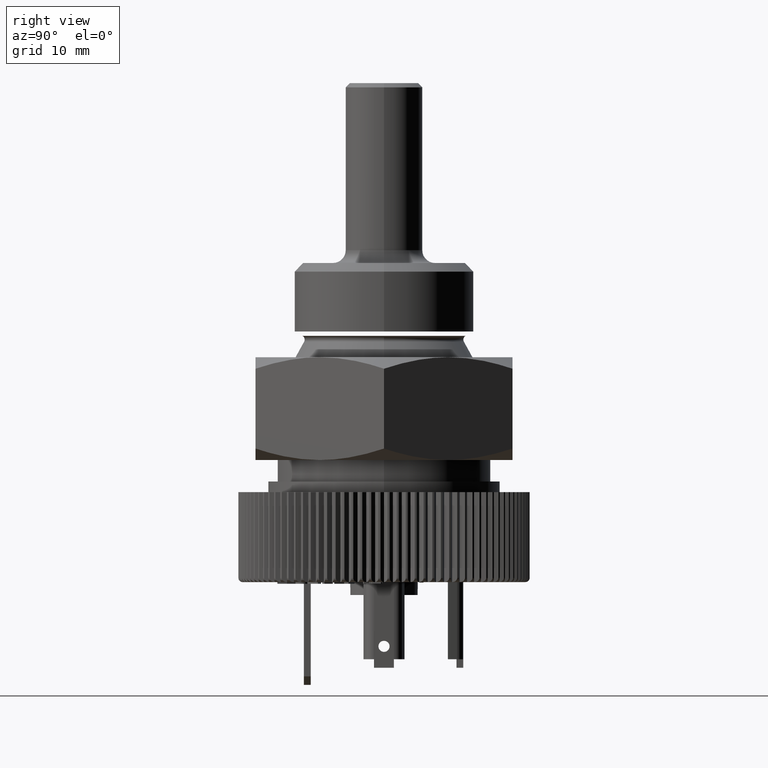
[diagram: clean part render]
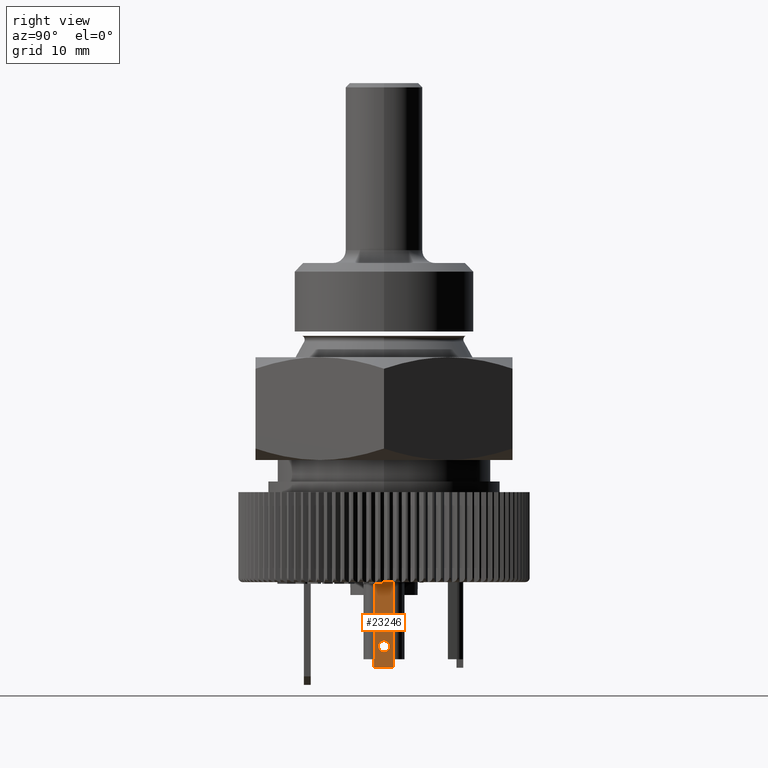
[diagram: same view with one face highlighted and labeled with its STEP entity id]
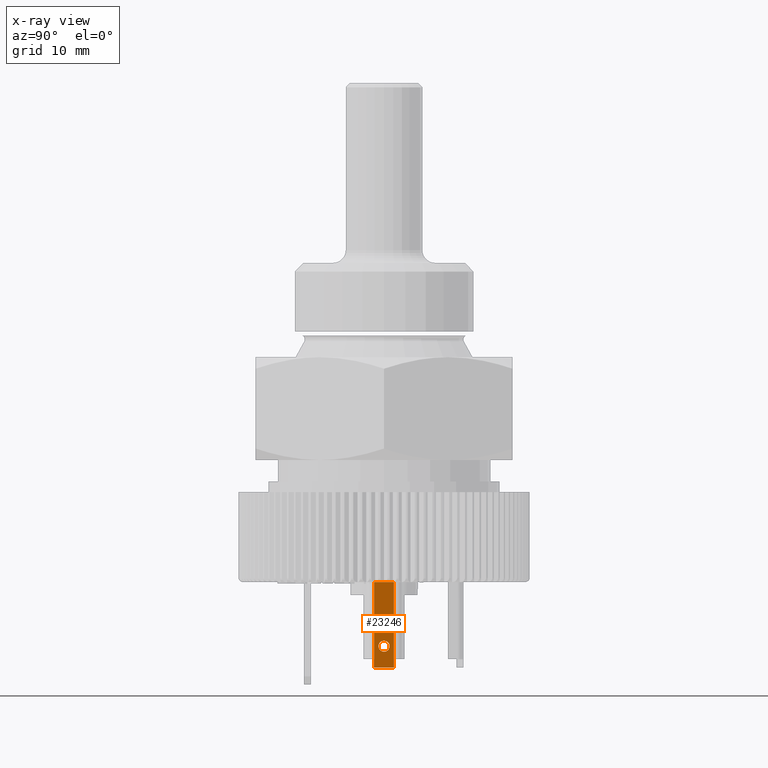
[diagram: x-ray of the same camera — body ghosted, the highlighted face saturated]
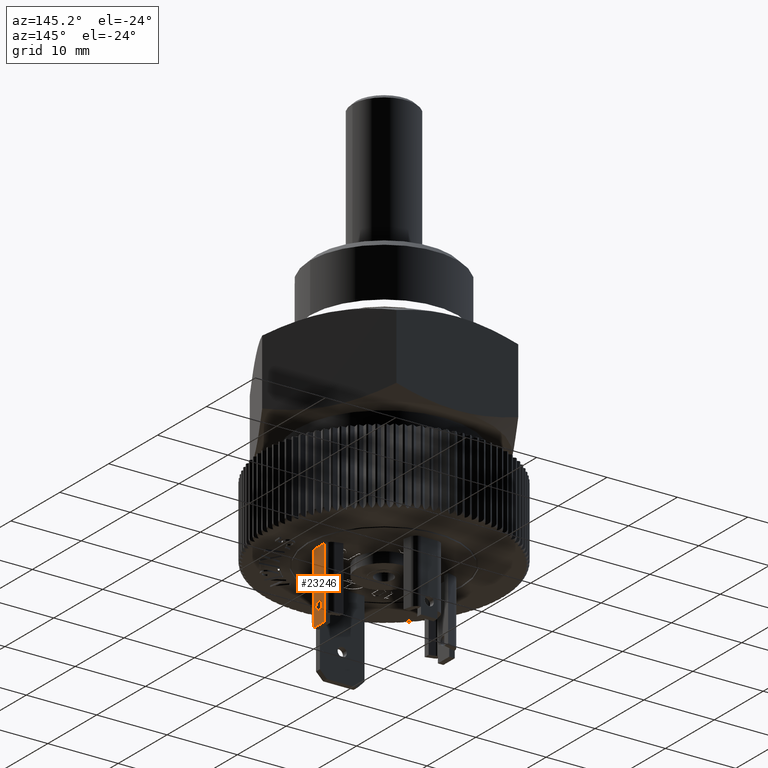
[diagram: same view with one face highlighted and labeled with its STEP entity id]
A machine part, right view. The second image highlights one B-rep face of the part: STEP entity #23246.
The next image is the same camera in x-ray: the body ghosted, the highlighted face saturated — about 0% of this face is hidden behind the body in this view.
A second angle (auxiliary view) of the same face is appended — the face is thin or edge-on in the first view.
In plain terms, the highlighted planar face has unit normal (-1, -0, 0).
Its self-contained STEP definition (entity closure, byte-faithful):
#24 = VECTOR ( 'NONE', #18138, 1000.000000000000000 ) ;
#135 = AXIS2_PLACEMENT_3D ( 'NONE', #26092, #16119, #13346 ) ;
#937 = VERTEX_POINT ( 'NONE', #28918 ) ;
#1389 = LINE ( 'NONE', #25595, #32866 ) ;
#1567 = DIRECTION ( 'NONE',  ( 0.0000000000000000000, 0.0000000000000000000, 1.000000000000000000 ) ) ;
#1686 = LINE ( 'NONE', #33519, #33429 ) ;
#1783 = DIRECTION ( 'NONE',  ( 1.000000000000000000, 1.942890293094023946E-16, 0.0000000000000000000 ) ) ;
#2326 = CARTESIAN_POINT ( 'NONE',  ( 9.249999999999998224, 1.150364465645019596, -36.25000000000000711 ) ) ;
#2588 = FACE_BOUND ( 'NONE', #10294, .T. ) ;
#3653 = EDGE_CURVE ( 'NONE', #27846, #5579, #3967, .T. ) ;
#3967 = CIRCLE ( 'NONE', #23410, 0.6500000000000002442 ) ;
#4434 = CARTESIAN_POINT ( 'NONE',  ( 9.250000000000000000, -1.150364465645023149, -26.25000000000000355 ) ) ;
#4654 = VECTOR ( 'NONE', #16002, 1000.000000000000000 ) ;
#4773 = LINE ( 'NONE', #31583, #22354 ) ;
#5219 = LINE ( 'NONE', #10958, #10971 ) ;
#5244 = CARTESIAN_POINT ( 'NONE',  ( 9.249999999999998224, -1.165711005404602485, -36.25000000000000711 ) ) ;
#5579 = VERTEX_POINT ( 'NONE', #6436 ) ;
#6048 = ORIENTED_EDGE ( 'NONE', *, *, #3653, .F. ) ;
#6398 = CARTESIAN_POINT ( 'NONE',  ( 9.250000000000000000, -1.150364465645022927, -35.25000000000000000 ) ) ;
#6436 = CARTESIAN_POINT ( 'NONE',  ( 9.249999999999998224, 0.6500000000000021316, -33.75000000000000000 ) ) ;
#6818 = CARTESIAN_POINT ( 'NONE',  ( 9.249999999999998224, 1.797173521111971755E-15, -33.75000000000000000 ) ) ;
#7145 = CARTESIAN_POINT ( 'NONE',  ( 9.249999999999998224, -1.165711005404602485, -35.25000000000000000 ) ) ;
#7246 = VERTEX_POINT ( 'NONE', #10526 ) ;
#7560 = VECTOR ( 'NONE', #19735, 1000.000000000000000 ) ;
#9396 = EDGE_CURVE ( 'NONE', #14337, #937, #5219, .T. ) ;
#10275 = CARTESIAN_POINT ( 'NONE',  ( 9.249999999999998224, -1.165711005404602485, -36.25000000000000711 ) ) ;
#10294 = EDGE_LOOP ( 'NONE', ( #14831, #6048 ) ) ;
#10526 = CARTESIAN_POINT ( 'NONE',  ( 9.250000000000000000, -1.150364465645022927, -35.25000000000000000 ) ) ;
#10730 = ORIENTED_EDGE ( 'NONE', *, *, #26961, .T. ) ;
#10958 = CARTESIAN_POINT ( 'NONE',  ( 9.249999999999998224, 1.150364465645019596, -35.25000000000000000 ) ) ;
#10971 = VECTOR ( 'NONE', #15473, 1000.000000000000000 ) ;
#11374 = ORIENTED_EDGE ( 'NONE', *, *, #23350, .T. ) ;
#12018 = EDGE_CURVE ( 'NONE', #33713, #30530, #34307, .T. ) ;
#12533 = EDGE_CURVE ( 'NONE', #7246, #24629, #4773, .T. ) ;
#12582 = DIRECTION ( 'NONE',  ( 1.942890293094023946E-16, -1.000000000000000000, -0.0000000000000000000 ) ) ;
#12790 = ORIENTED_EDGE ( 'NONE', *, *, #16263, .F. ) ;
#13346 = DIRECTION ( 'NONE',  ( 9.482776684682665360E-16, -1.000000000000000000, 0.0000000000000000000 ) ) ;
#13811 = EDGE_CURVE ( 'NONE', #7246, #22066, #19896, .T. ) ;
#14337 = VERTEX_POINT ( 'NONE', #26888 ) ;
#14721 = DIRECTION ( 'NONE',  ( 9.482776684682665360E-16, -1.000000000000000000, 0.0000000000000000000 ) ) ;
#14831 = ORIENTED_EDGE ( 'NONE', *, *, #33235, .F. ) ;
#15363 = CARTESIAN_POINT ( 'NONE',  ( 9.249999999999998224, -1.165711005404602485, -36.25000000000000711 ) ) ;
#15473 = DIRECTION ( 'NONE',  ( 0.0000000000000000000, 0.0000000000000000000, 1.000000000000000000 ) ) ;
#15921 = ORIENTED_EDGE ( 'NONE', *, *, #12018, .F. ) ;
#16002 = DIRECTION ( 'NONE',  ( 1.942890293094023946E-16, -1.000000000000000000, -0.0000000000000000000 ) ) ;
#16059 = DIRECTION ( 'NONE',  ( 1.000000000000000000, 1.942890293094023946E-16, 0.0000000000000000000 ) ) ;
#16119 = DIRECTION ( 'NONE',  ( -1.000000000000000000, -9.482776684682665360E-16, 0.0000000000000000000 ) ) ;
#16263 = EDGE_CURVE ( 'NONE', #30530, #24629, #23724, .T. ) ;
#17566 = DIRECTION ( 'NONE',  ( 0.0000000000000000000, 1.000000000000000000, 0.0000000000000000000 ) ) ;
#18138 = DIRECTION ( 'NONE',  ( 0.0000000000000000000, 0.0000000000000000000, 1.000000000000000000 ) ) ;
#18608 = EDGE_LOOP ( 'NONE', ( #11374, #24998, #22560, #12790, #15921, #10730, #19671 ) ) ;
#18685 = AXIS2_PLACEMENT_3D ( 'NONE', #6818, #1783, #17566 ) ;
#19671 = ORIENTED_EDGE ( 'NONE', *, *, #9396, .T. ) ;
#19735 = DIRECTION ( 'NONE',  ( 0.0000000000000000000, 0.0000000000000000000, 1.000000000000000000 ) ) ;
#19896 = LINE ( 'NONE', #6398, #7560 ) ;
#20999 = FACE_OUTER_BOUND ( 'NONE', #18608, .T. ) ;
#22066 = VERTEX_POINT ( 'NONE', #4434 ) ;
#22354 = VECTOR ( 'NONE', #12582, 1000.000000000000000 ) ;
#22560 = ORIENTED_EDGE ( 'NONE', *, *, #12533, .T. ) ;
#22603 = CARTESIAN_POINT ( 'NONE',  ( 9.249999999999998224, -0.6499999999999984679, -33.75000000000000000 ) ) ;
#23246 = ADVANCED_FACE ( 'NONE', ( #2588, #20999 ), #23469, .F. ) ;
#23350 = EDGE_CURVE ( 'NONE', #937, #22066, #1686, .T. ) ;
#23410 = AXIS2_PLACEMENT_3D ( 'NONE', #31756, #16059, #32099 ) ;
#23469 = PLANE ( 'NONE',  #135 ) ;
#23724 = LINE ( 'NONE', #15363, #24 ) ;
#24629 = VERTEX_POINT ( 'NONE', #7145 ) ;
#24998 = ORIENTED_EDGE ( 'NONE', *, *, #13811, .F. ) ;
#25595 = CARTESIAN_POINT ( 'NONE',  ( 9.249999999999998224, 1.150364465645019596, -36.25000000000000711 ) ) ;
#26092 = CARTESIAN_POINT ( 'NONE',  ( 9.250000000000000000, -1.150364465645023149, -35.25000000000000000 ) ) ;
#26888 = CARTESIAN_POINT ( 'NONE',  ( 9.249999999999998224, 1.150364465645019596, -35.25000000000000000 ) ) ;
#26961 = EDGE_CURVE ( 'NONE', #33713, #14337, #1389, .T. ) ;
#27846 = VERTEX_POINT ( 'NONE', #22603 ) ;
#28918 = CARTESIAN_POINT ( 'NONE',  ( 9.249999999999998224, 1.150364465645019596, -26.25000000000000355 ) ) ;
#29845 = CIRCLE ( 'NONE', #18685, 0.6500000000000002442 ) ;
#30530 = VERTEX_POINT ( 'NONE', #10275 ) ;
#31583 = CARTESIAN_POINT ( 'NONE',  ( 9.249999999999998224, -1.165711005404602485, -35.25000000000000000 ) ) ;
#31756 = CARTESIAN_POINT ( 'NONE',  ( 9.249999999999998224, 1.797173521111971755E-15, -33.75000000000000000 ) ) ;
#32099 = DIRECTION ( 'NONE',  ( 0.0000000000000000000, 1.000000000000000000, 0.0000000000000000000 ) ) ;
#32866 = VECTOR ( 'NONE', #1567, 1000.000000000000000 ) ;
#33235 = EDGE_CURVE ( 'NONE', #5579, #27846, #29845, .T. ) ;
#33429 = VECTOR ( 'NONE', #14721, 1000.000000000000000 ) ;
#33519 = CARTESIAN_POINT ( 'NONE',  ( 9.250000000000000000, -1.150364465645023149, -26.25000000000000355 ) ) ;
#33713 = VERTEX_POINT ( 'NONE', #2326 ) ;
#34307 = LINE ( 'NONE', #5244, #4654 ) ;